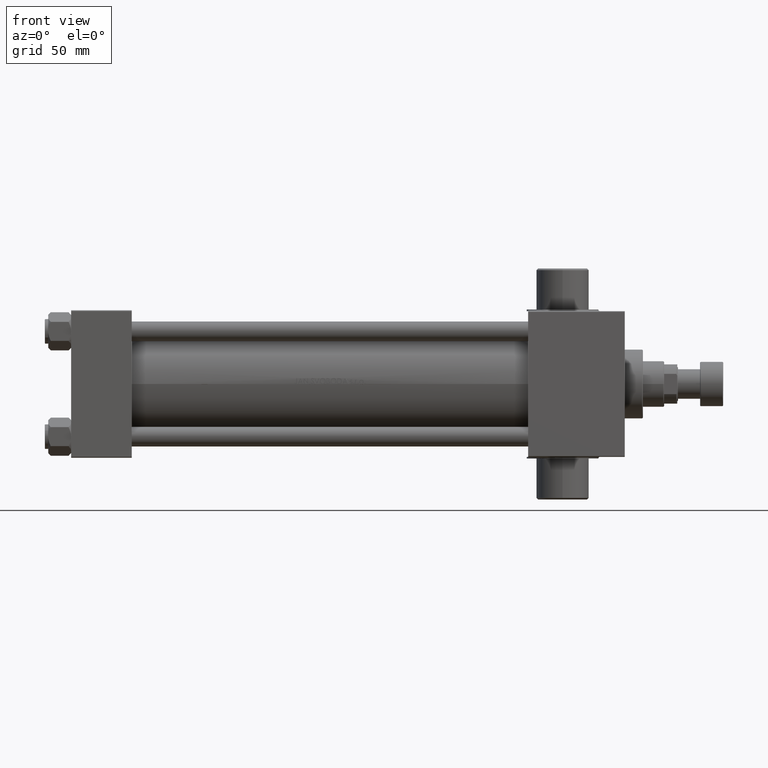
[diagram: clean part render]
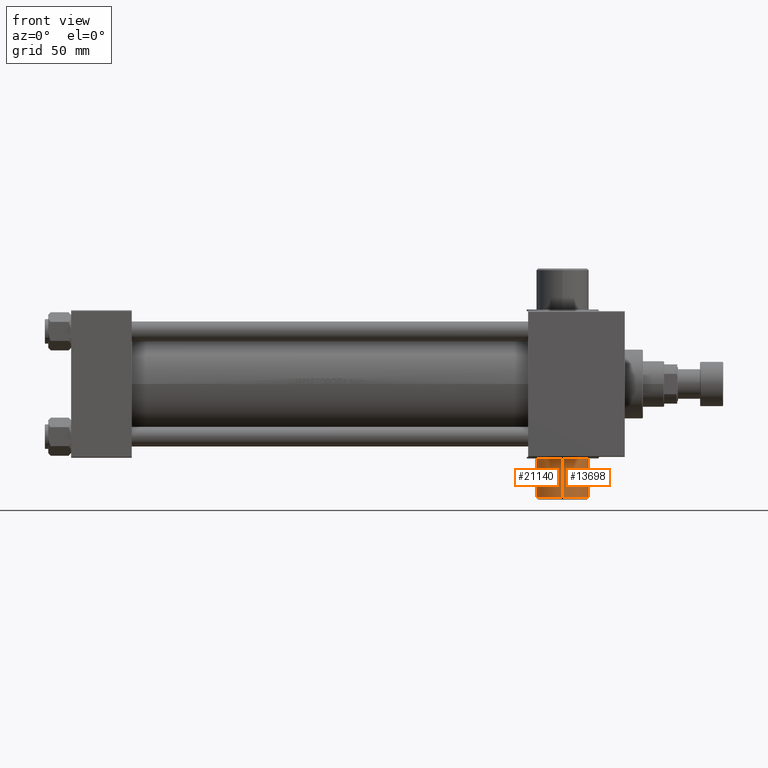
[diagram: same view with one multi-face feature highlighted, each face labeled with its STEP entity id]
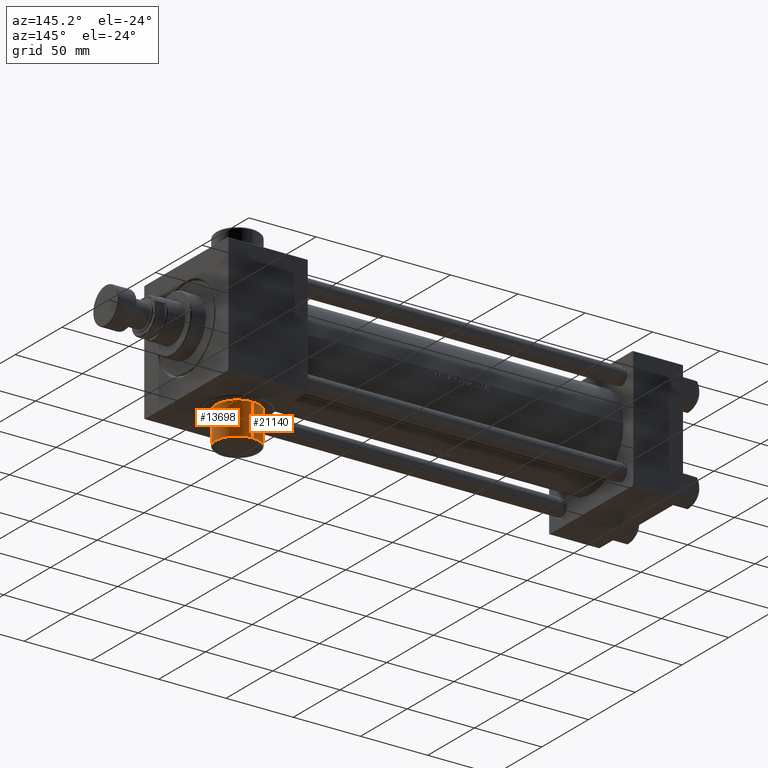
[diagram: same view with one multi-face feature highlighted, each face labeled with its STEP entity id]
A machine part, front view. The highlighted faces form ONE feature: a constant-radius fillet chain: 2 tangent blend faces with common blend radius 16 mm. The faces share edges in the B-rep.
A second angle (auxiliary view) of the same feature is appended — it is thin or edge-on in the first view.
Their STEP definitions:
[1] entity #21140 (Cylinder):
#904 = VECTOR ( 'NONE', #45948, 1000.000000000000000 ) ;
#1908 = CARTESIAN_POINT ( 'NONE',  ( 300.0000000000000000, 70.50000000000000000, -2.255140518769849223E-15 ) ) ;
#2003 = AXIS2_PLACEMENT_3D ( 'NONE', #1908, #13575, #27624 ) ;
#3089 = EDGE_CURVE ( 'NONE', #42230, #46875, #45468, .T. ) ;
#3512 = DIRECTION ( 'NONE',  ( -0.000000000000000000, -1.000000000000000000, 8.673617379884030542E-17 ) ) ;
#4040 = CARTESIAN_POINT ( 'NONE',  ( 300.0000000000000000, 45.49999999999999289, 16.00000000000002487 ) ) ;
#5538 = ORIENTED_EDGE ( 'NONE', *, *, #36912, .F. ) ;
#5571 = CIRCLE ( 'NONE', #32158, 16.00000000000002487 ) ;
#12935 = CARTESIAN_POINT ( 'NONE',  ( 300.0000000000000000, 45.49999999999999289, -8.673617379884004657E-17 ) ) ;
#13096 = VERTEX_POINT ( 'NONE', #32596 ) ;
#13343 = FACE_OUTER_BOUND ( 'NONE', #29331, .T. ) ;
#13575 = DIRECTION ( 'NONE',  ( -0.000000000000000000, -1.000000000000000000, 8.673617379884036705E-17 ) ) ;
#14876 = LINE ( 'NONE', #26050, #41186 ) ;
#17272 = EDGE_CURVE ( 'NONE', #13096, #42230, #23276, .T. ) ;
#18748 = DIRECTION ( 'NONE',  ( 0.000000000000000000, 0.000000000000000000, 1.000000000000000000 ) ) ;
#21140 = ADVANCED_FACE ( 'NONE', ( #13343 ), #31883, .T. ) ;
#21251 = ORIENTED_EDGE ( 'NONE', *, *, #34789, .F. ) ;
#22014 = DIRECTION ( 'NONE',  ( -0.000000000000000000, -1.000000000000000000, 8.673617379884036705E-17 ) ) ;
#22672 = ORIENTED_EDGE ( 'NONE', *, *, #3089, .T. ) ;
#23276 = CIRCLE ( 'NONE', #39965, 16.00000000000002487 ) ;
#24244 = CARTESIAN_POINT ( 'NONE',  ( 300.0000000000000000, 69.49999999999987210, -16.00000000000002842 ) ) ;
#25536 = VERTEX_POINT ( 'NONE', #4040 ) ;
#26050 = CARTESIAN_POINT ( 'NONE',  ( 300.0000000000000000, 70.50000000000000000, 16.00000000000002132 ) ) ;
#27624 = DIRECTION ( 'NONE',  ( 0.000000000000000000, 0.000000000000000000, -1.000000000000000000 ) ) ;
#29331 = EDGE_LOOP ( 'NONE', ( #21251, #37318, #22672, #5538 ) ) ;
#30744 = CARTESIAN_POINT ( 'NONE',  ( 300.0000000000000000, 70.50000000000000000, -16.00000000000002842 ) ) ;
#31494 = DIRECTION ( 'NONE',  ( -0.000000000000000000, -1.000000000000000000, 8.673617379884036705E-17 ) ) ;
#31883 = CYLINDRICAL_SURFACE ( 'NONE', #2003, 16.00000000000002487 ) ;
#32158 = AXIS2_PLACEMENT_3D ( 'NONE', #12935, #31494, #41718 ) ;
#32596 = CARTESIAN_POINT ( 'NONE',  ( 300.0000000000000000, 69.49999999999987210, 16.00000000000002132 ) ) ;
#33509 = CARTESIAN_POINT ( 'NONE',  ( 300.0000000000000000, 45.49999999999999289, -16.00000000000002487 ) ) ;
#34789 = EDGE_CURVE ( 'NONE', #13096, #25536, #14876, .T. ) ;
#36912 = EDGE_CURVE ( 'NONE', #25536, #46875, #5571, .T. ) ;
#37318 = ORIENTED_EDGE ( 'NONE', *, *, #17272, .T. ) ;
#39965 = AXIS2_PLACEMENT_3D ( 'NONE', #43946, #3512, #18748 ) ;
#41186 = VECTOR ( 'NONE', #22014, 1000.000000000000000 ) ;
#41718 = DIRECTION ( 'NONE',  ( 0.000000000000000000, 0.000000000000000000, -1.000000000000000000 ) ) ;
#42230 = VERTEX_POINT ( 'NONE', #24244 ) ;
#43946 = CARTESIAN_POINT ( 'NONE',  ( 300.0000000000000000, 69.49999999999987210, -2.168404344970998218E-15 ) ) ;
#45468 = LINE ( 'NONE', #30744, #904 ) ;
#45948 = DIRECTION ( 'NONE',  ( -0.000000000000000000, -1.000000000000000000, 8.673617379884036705E-17 ) ) ;
#46875 = VERTEX_POINT ( 'NONE', #33509 ) ;
[2] entity #13698 (Cylinder):
#904 = VECTOR ( 'NONE', #45948, 1000.000000000000000 ) ;
#2462 = CARTESIAN_POINT ( 'NONE',  ( 300.0000000000000000, 69.49999999999987210, -2.168404344970998218E-15 ) ) ;
#2726 = DIRECTION ( 'NONE',  ( 0.000000000000000000, 0.000000000000000000, -1.000000000000000000 ) ) ;
#3089 = EDGE_CURVE ( 'NONE', #42230, #46875, #45468, .T. ) ;
#3654 = DIRECTION ( 'NONE',  ( -0.000000000000000000, -1.000000000000000000, 8.673617379884036705E-17 ) ) ;
#4040 = CARTESIAN_POINT ( 'NONE',  ( 300.0000000000000000, 45.49999999999999289, 16.00000000000002487 ) ) ;
#5936 = EDGE_CURVE ( 'NONE', #46875, #25536, #30614, .T. ) ;
#6527 = CARTESIAN_POINT ( 'NONE',  ( 300.0000000000000000, 45.49999999999999289, -8.673617379884004657E-17 ) ) ;
#7198 = CYLINDRICAL_SURFACE ( 'NONE', #20880, 16.00000000000002487 ) ;
#8715 = AXIS2_PLACEMENT_3D ( 'NONE', #2462, #27710, #31505 ) ;
#10771 = FACE_OUTER_BOUND ( 'NONE', #12863, .T. ) ;
#12863 = EDGE_LOOP ( 'NONE', ( #19835, #41503, #30790, #31528 ) ) ;
#13096 = VERTEX_POINT ( 'NONE', #32596 ) ;
#13628 = EDGE_CURVE ( 'NONE', #42230, #13096, #29213, .T. ) ;
#13698 = ADVANCED_FACE ( 'NONE', ( #10771 ), #7198, .T. ) ;
#14876 = LINE ( 'NONE', #26050, #41186 ) ;
#19835 = ORIENTED_EDGE ( 'NONE', *, *, #13628, .T. ) ;
#20880 = AXIS2_PLACEMENT_3D ( 'NONE', #29789, #32660, #37153 ) ;
#22014 = DIRECTION ( 'NONE',  ( -0.000000000000000000, -1.000000000000000000, 8.673617379884036705E-17 ) ) ;
#24244 = CARTESIAN_POINT ( 'NONE',  ( 300.0000000000000000, 69.49999999999987210, -16.00000000000002842 ) ) ;
#25536 = VERTEX_POINT ( 'NONE', #4040 ) ;
#26050 = CARTESIAN_POINT ( 'NONE',  ( 300.0000000000000000, 70.50000000000000000, 16.00000000000002132 ) ) ;
#27710 = DIRECTION ( 'NONE',  ( -0.000000000000000000, -1.000000000000000000, 8.673617379884030542E-17 ) ) ;
#29213 = CIRCLE ( 'NONE', #8715, 16.00000000000002487 ) ;
#29789 = CARTESIAN_POINT ( 'NONE',  ( 300.0000000000000000, 70.50000000000000000, -2.255140518769849223E-15 ) ) ;
#30614 = CIRCLE ( 'NONE', #34417, 16.00000000000002487 ) ;
#30744 = CARTESIAN_POINT ( 'NONE',  ( 300.0000000000000000, 70.50000000000000000, -16.00000000000002842 ) ) ;
#30790 = ORIENTED_EDGE ( 'NONE', *, *, #5936, .F. ) ;
#31505 = DIRECTION ( 'NONE',  ( 0.000000000000000000, 0.000000000000000000, 1.000000000000000000 ) ) ;
#31528 = ORIENTED_EDGE ( 'NONE', *, *, #3089, .F. ) ;
#32596 = CARTESIAN_POINT ( 'NONE',  ( 300.0000000000000000, 69.49999999999987210, 16.00000000000002132 ) ) ;
#32660 = DIRECTION ( 'NONE',  ( -0.000000000000000000, -1.000000000000000000, 8.673617379884036705E-17 ) ) ;
#33509 = CARTESIAN_POINT ( 'NONE',  ( 300.0000000000000000, 45.49999999999999289, -16.00000000000002487 ) ) ;
#34417 = AXIS2_PLACEMENT_3D ( 'NONE', #6527, #3654, #2726 ) ;
#34789 = EDGE_CURVE ( 'NONE', #13096, #25536, #14876, .T. ) ;
#37153 = DIRECTION ( 'NONE',  ( 0.000000000000000000, 0.000000000000000000, -1.000000000000000000 ) ) ;
#41186 = VECTOR ( 'NONE', #22014, 1000.000000000000000 ) ;
#41503 = ORIENTED_EDGE ( 'NONE', *, *, #34789, .T. ) ;
#42230 = VERTEX_POINT ( 'NONE', #24244 ) ;
#45468 = LINE ( 'NONE', #30744, #904 ) ;
#45948 = DIRECTION ( 'NONE',  ( -0.000000000000000000, -1.000000000000000000, 8.673617379884036705E-17 ) ) ;
#46875 = VERTEX_POINT ( 'NONE', #33509 ) ;